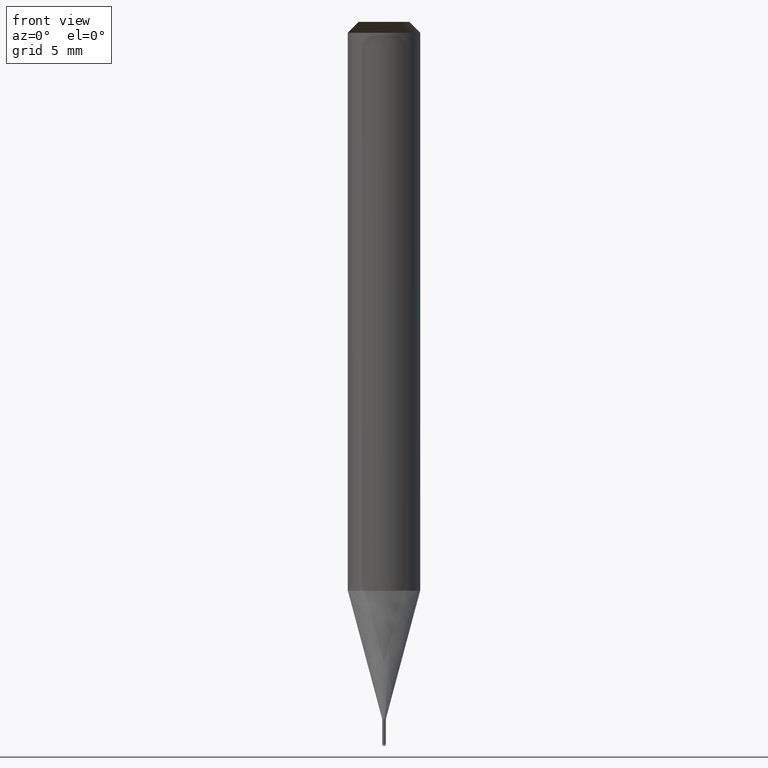
[diagram: clean part render]
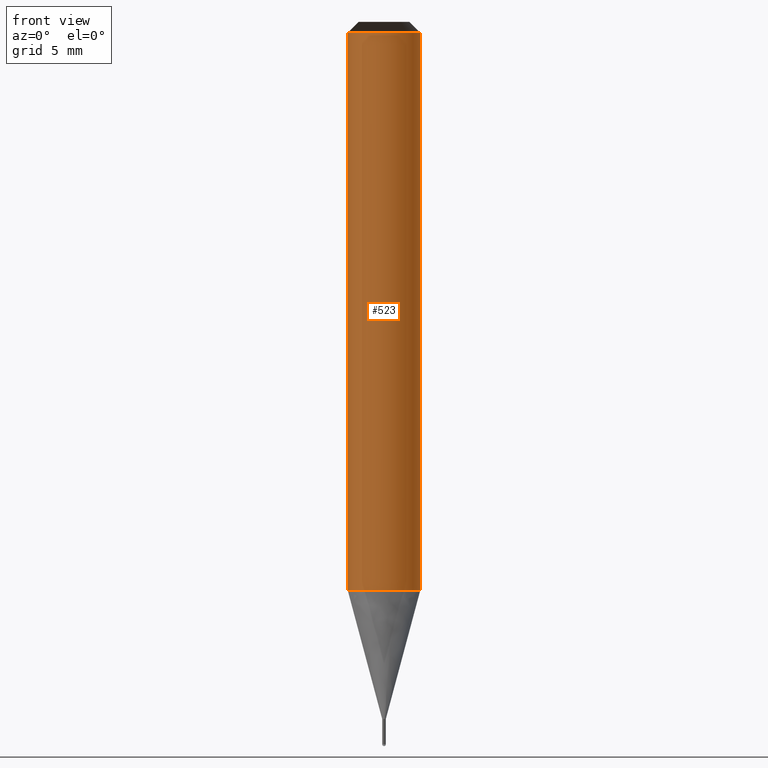
[diagram: same view with one face highlighted and labeled with its STEP entity id]
A machine part, front view. The second image highlights one B-rep face of the part: STEP entity #523.
In plain terms, the highlighted face is a freeform B-spline surface patch.
Its self-contained STEP definition (entity closure, byte-faithful):
#195=CARTESIAN_POINT('',(2.0,0.0,0.0));
#199=CARTESIAN_POINT('',(-2.0,0.0,0.0));
#200=CARTESIAN_POINT('',(2.0,0.0,30.81));
#204=CARTESIAN_POINT('',(-2.0,0.0,30.81));
#214=CARTESIAN_POINT('',(-2.0,-2.0,0.0));
#215=CARTESIAN_POINT('',(0.0,-2.0,0.0));
#216=CARTESIAN_POINT('',(2.0,-2.0,0.0));
#217=CARTESIAN_POINT('',(-2.0,-2.0,30.81));
#218=CARTESIAN_POINT('',(0.0,-2.0,30.81));
#219=CARTESIAN_POINT('',(2.0,-2.0,30.81));
#504=(
BOUNDED_SURFACE()
B_SPLINE_SURFACE(1,2,(
(#199,#214,#215,#216,#195),
(#204,#217,#218,#219,#200)
), .UNSPECIFIED.,.F.,.F.,.F.)
B_SPLINE_SURFACE_WITH_KNOTS((2,2),(3,2,3),(
0.0,1.0),(
0.0,0.5,1.0), .UNSPECIFIED.)
GEOMETRIC_REPRESENTATION_ITEM()
RATIONAL_B_SPLINE_SURFACE(((1.0,0.707106781187,1.0,0.707106781187,1.0),
(1.0,0.707106781187,1.0,0.707106781187,1.0)
))
REPRESENTATION_ITEM('')
SURFACE()
);
#505=(
BOUNDED_CURVE()
B_SPLINE_CURVE(1,(#204,#199),.UNSPECIFIED.,.F.,.F.)
B_SPLINE_CURVE_WITH_KNOTS((2,2),
(0.0,1.0),.UNSPECIFIED.)
CURVE()
GEOMETRIC_REPRESENTATION_ITEM()
RATIONAL_B_SPLINE_CURVE((1.0,1.0))
REPRESENTATION_ITEM('')
);
#506=(
BOUNDED_CURVE()
B_SPLINE_CURVE(2,(#199,#214,#215,#216,#195),.UNSPECIFIED.,.F.,.F.)
B_SPLINE_CURVE_WITH_KNOTS((3,2,3),
(0.0,0.5,1.0),.UNSPECIFIED.)
CURVE()
GEOMETRIC_REPRESENTATION_ITEM()
RATIONAL_B_SPLINE_CURVE((1.0,0.707106781187,1.0,0.707106781187,1.0))
REPRESENTATION_ITEM('')
);
#507=(
BOUNDED_CURVE()
B_SPLINE_CURVE(1,(#195,#200),.UNSPECIFIED.,.F.,.F.)
B_SPLINE_CURVE_WITH_KNOTS((2,2),
(0.0,1.0),.UNSPECIFIED.)
CURVE()
GEOMETRIC_REPRESENTATION_ITEM()
RATIONAL_B_SPLINE_CURVE((1.0,1.0))
REPRESENTATION_ITEM('')
);
#508=(
BOUNDED_CURVE()
B_SPLINE_CURVE(2,(#200,#219,#218,#217,#204),.UNSPECIFIED.,.F.,.F.)
B_SPLINE_CURVE_WITH_KNOTS((3,2,3),
(0.0,0.5,1.0),.UNSPECIFIED.)
CURVE()
GEOMETRIC_REPRESENTATION_ITEM()
RATIONAL_B_SPLINE_CURVE((1.0,0.707106781187,1.0,0.707106781187,1.0))
REPRESENTATION_ITEM('')
);
#509=VERTEX_POINT('',#195);
#510=VERTEX_POINT('',#199);
#511=VERTEX_POINT('',#200);
#512=VERTEX_POINT('',#204);
#513=EDGE_CURVE('',#512,#510,#505,.T.);
#514=EDGE_CURVE('',#510,#509,#506,.T.);
#515=EDGE_CURVE('',#509,#511,#507,.T.);
#516=EDGE_CURVE('',#511,#512,#508,.T.);
#517=ORIENTED_EDGE('',*,*,#513,.T.);
#518=ORIENTED_EDGE('',*,*,#514,.T.);
#519=ORIENTED_EDGE('',*,*,#515,.T.);
#520=ORIENTED_EDGE('',*,*,#516,.T.);
#521=EDGE_LOOP('',(#517,#518,#519,#520));
#522=FACE_OUTER_BOUND('',#521,.T.);
#523=ADVANCED_FACE('',(#522),#504,.T.);